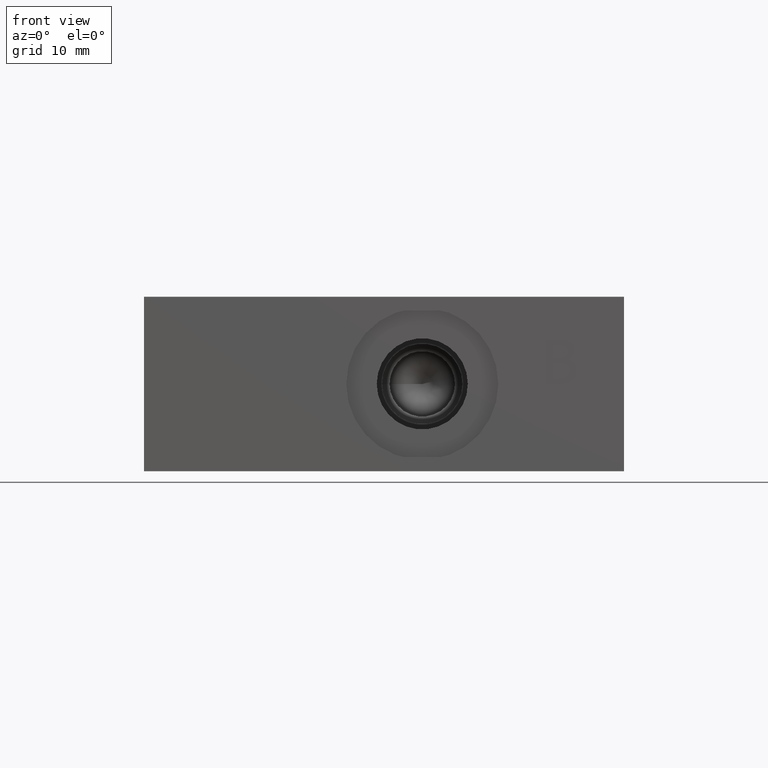
[diagram: clean part render]
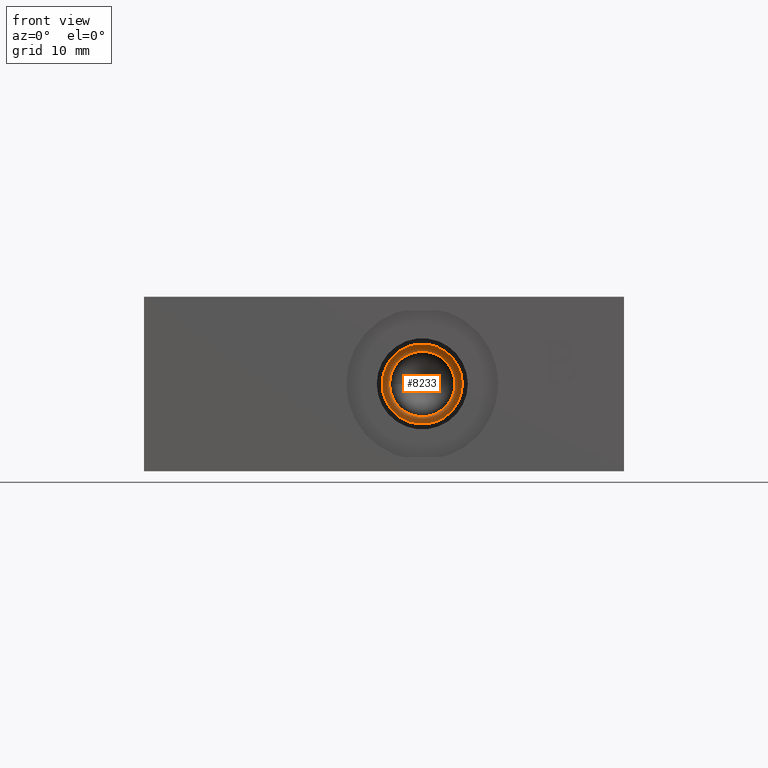
[diagram: same view with one face highlighted and labeled with its STEP entity id]
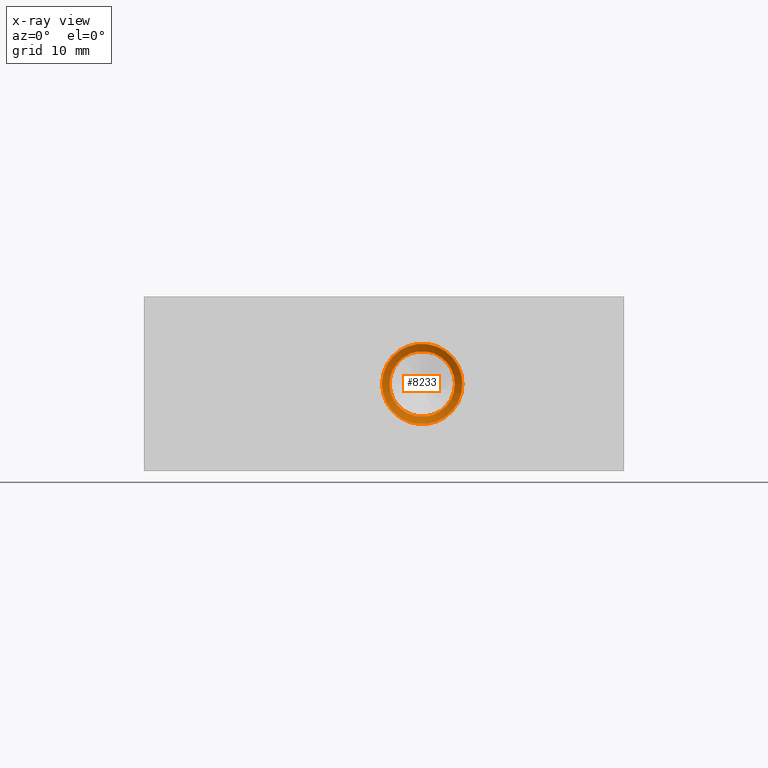
[diagram: x-ray of the same camera — body ghosted, the highlighted face saturated]
A machine part, front view. The second image highlights one B-rep face of the part: STEP entity #8233.
The next image is the same camera in x-ray: the body ghosted, the highlighted face saturated — about 0% of this face is hidden behind the body in this view.
In plain terms, the highlighted conical surface has half-angle 60 deg.
Its self-contained STEP definition (entity closure, byte-faithful):
#57=CONICAL_SURFACE('',#8638,5.842,1.04719754767971);
#109=CIRCLE('',#8627,4.7625);
#114=CIRCLE('',#8637,5.842);
#888=FACE_OUTER_BOUND('',#1371,.T.);
#1371=EDGE_LOOP('',(#7285,#7286,#7287,#7288));
#2244=LINE('',#13819,#3104);
#3104=VECTOR('',#10256,5.842);
#4025=VERTEX_POINT('',#13797);
#4030=VERTEX_POINT('',#13815);
#5122=EDGE_CURVE('',#4025,#4025,#109,.T.);
#5131=EDGE_CURVE('',#4030,#4030,#114,.T.);
#5132=EDGE_CURVE('',#4030,#4025,#2244,.T.);
#7285=ORIENTED_EDGE('',*,*,#5131,.F.);
#7286=ORIENTED_EDGE('',*,*,#5132,.T.);
#7287=ORIENTED_EDGE('',*,*,#5122,.T.);
#7288=ORIENTED_EDGE('',*,*,#5132,.F.);
#8233=ADVANCED_FACE('',(#888),#57,.F.);
#8627=AXIS2_PLACEMENT_3D('',#13798,#10228,#10229);
#8637=AXIS2_PLACEMENT_3D('',#13817,#10252,#10253);
#8638=AXIS2_PLACEMENT_3D('',#13818,#10254,#10255);
#10228=DIRECTION('center_axis',(0.,1.,0.));
#10229=DIRECTION('ref_axis',(1.,0.,0.));
#10252=DIRECTION('center_axis',(0.,1.,0.));
#10253=DIRECTION('ref_axis',(1.,0.,0.));
#10254=DIRECTION('center_axis',(0.,-1.,0.));
#10255=DIRECTION('ref_axis',(1.,0.,0.));
#10256=DIRECTION('',(0.866025402025995,0.500000003045714,-1.06057523657143E-16));
#13797=CARTESIAN_POINT('',(35.7251,16.4781693206522,12.7));
#13798=CARTESIAN_POINT('Origin',(40.4876,16.4781693206522,12.7));
#13815=CARTESIAN_POINT('',(34.6456,15.8549197,12.7));
#13817=CARTESIAN_POINT('Origin',(40.4876,15.8549197,12.7));
#13818=CARTESIAN_POINT('Origin',(40.4876,15.8549197,12.7));
#13819=CARTESIAN_POINT('',(34.6456,15.8549197,12.7));